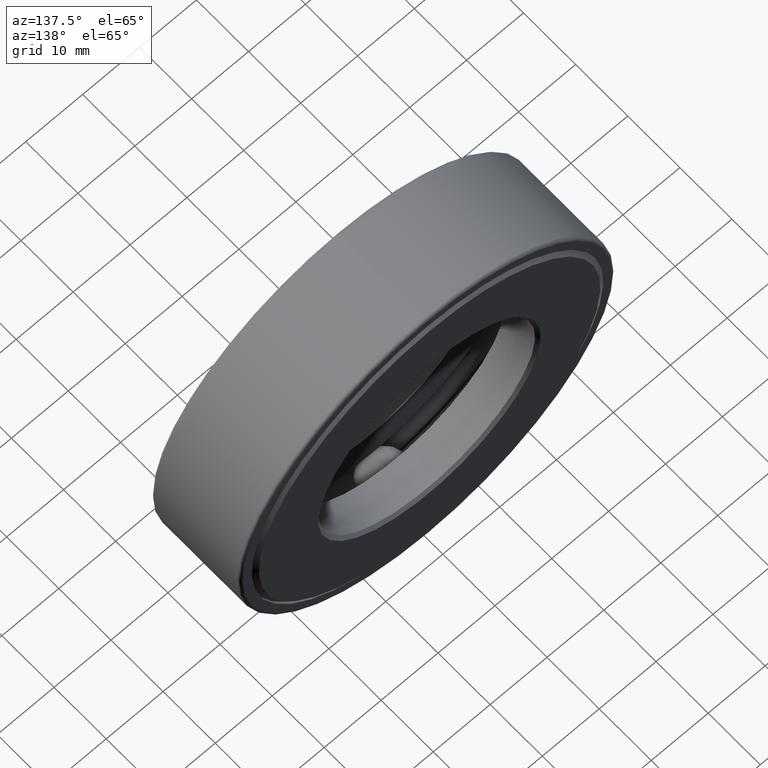
[diagram: clean part render]
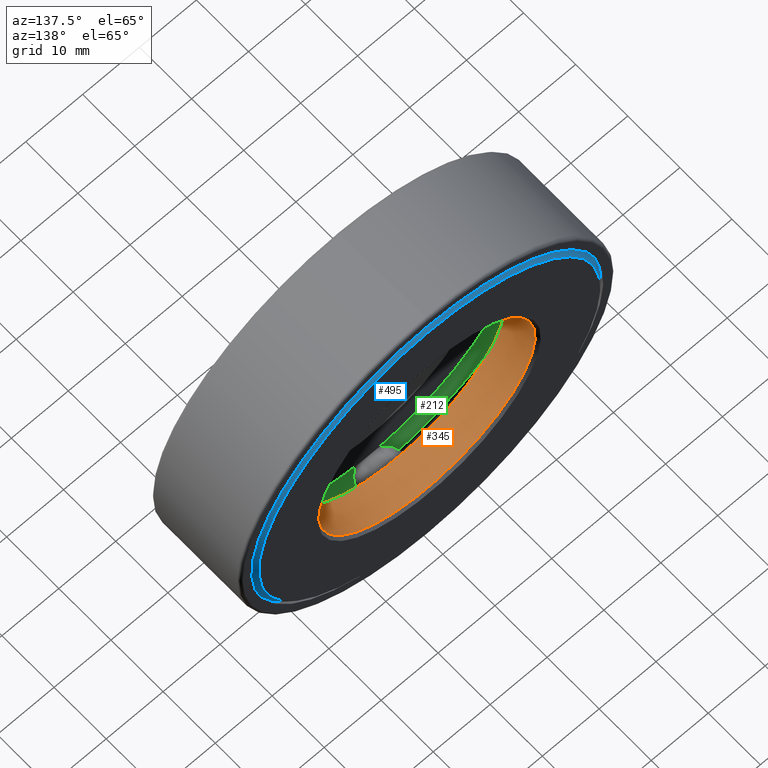
[diagram: same view with three faces highlighted in distinct colors, each labeled with its STEP entity id]
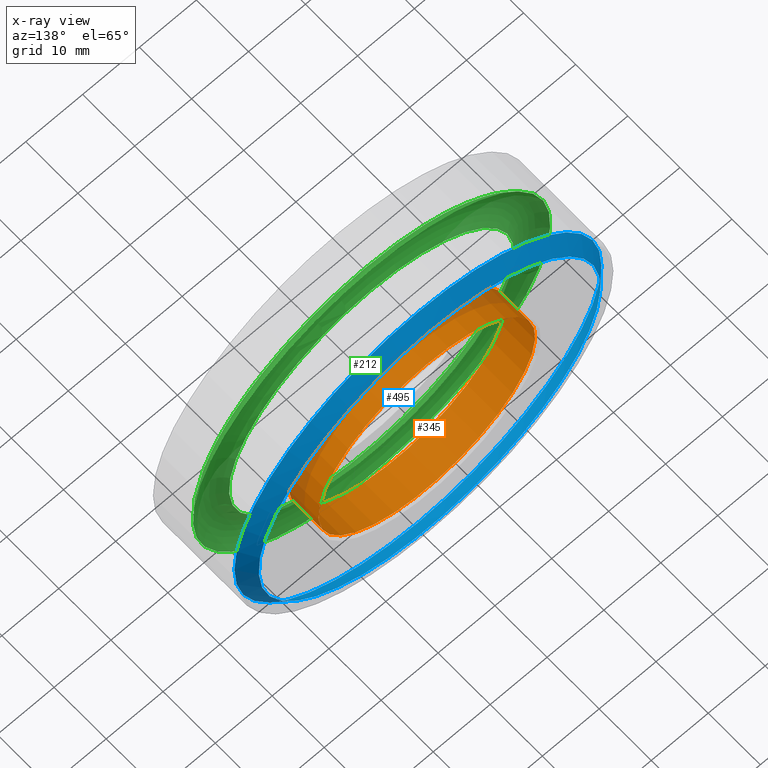
[diagram: x-ray of the same camera — body ghosted, the three highlighted faces saturated]
A machine part, auxiliary view with three faces highlighted in distinct colors.
The next image is the same camera in x-ray (body ghosted, the three faces saturated) — at least one of them is partly hidden behind the body in this view.
Their STEP definitions:

[orange] entity #345 — the highlighted cylindrical surface (bore or boss wall) has radius 19.05 mm, axis along (-0, 1, -0).
#8 = EDGE_CURVE ( 'NONE', #547, #547, #39, .T. ) ;
#32 = CARTESIAN_POINT ( 'NONE',  ( 0.0000000000000000000, 0.4375000000000000000, 0.0000000000000000000 ) ) ;
#39 = CIRCLE ( 'NONE', #539, 0.7500000000000002200 ) ;
#70 = ORIENTED_EDGE ( 'NONE', *, *, #8, .F. ) ;
#77 = DIRECTION ( 'NONE',  ( -0.0000000000000000000, 1.000000000000000000, -0.0000000000000000000 ) ) ;
#98 = EDGE_CURVE ( 'NONE', #519, #519, #534, .T. ) ;
#99 = CARTESIAN_POINT ( 'NONE',  ( 0.0000000000000000000, 0.0000000000000000000, 0.0000000000000000000 ) ) ;
#113 = FACE_OUTER_BOUND ( 'NONE', #275, .T. ) ;
#177 = CARTESIAN_POINT ( 'NONE',  ( 0.0000000000000000000, 0.6674999999999995400, 0.7500000000000002200 ) ) ;
#227 = FACE_OUTER_BOUND ( 'NONE', #238, .T. ) ;
#238 = EDGE_LOOP ( 'NONE', ( #399 ) ) ;
#264 = CARTESIAN_POINT ( 'NONE',  ( 0.0000000000000000000, 0.6674999999999995400, 0.0000000000000000000 ) ) ;
#275 = EDGE_LOOP ( 'NONE', ( #70 ) ) ;
#301 = CARTESIAN_POINT ( 'NONE',  ( 0.0000000000000000000, 0.4375000000000000000, 0.7500000000000002200 ) ) ;
#318 = DIRECTION ( 'NONE',  ( 0.0000000000000000000, 0.0000000000000000000, 1.000000000000000000 ) ) ;
#345 = ADVANCED_FACE ( 'NONE', ( #227, #113 ), #421, .F. ) ;
#375 = AXIS2_PLACEMENT_3D ( 'NONE', #99, #468, #525 ) ;
#399 = ORIENTED_EDGE ( 'NONE', *, *, #98, .T. ) ;
#421 = CYLINDRICAL_SURFACE ( 'NONE', #375, 0.7500000000000002200 ) ;
#468 = DIRECTION ( 'NONE',  ( -0.0000000000000000000, 1.000000000000000000, -0.0000000000000000000 ) ) ;
#498 = DIRECTION ( 'NONE',  ( 0.0000000000000000000, 0.0000000000000000000, 1.000000000000000000 ) ) ;
#519 = VERTEX_POINT ( 'NONE', #177 ) ;
#525 = DIRECTION ( 'NONE',  ( 0.0000000000000000000, 0.0000000000000000000, 1.000000000000000000 ) ) ;
#534 = CIRCLE ( 'NONE', #593, 0.7500000000000002200 ) ;
#539 = AXIS2_PLACEMENT_3D ( 'NONE', #32, #77, #498 ) ;
#547 = VERTEX_POINT ( 'NONE', #301 ) ;
#593 = AXIS2_PLACEMENT_3D ( 'NONE', #264, #595, #318 ) ;
#595 = DIRECTION ( 'NONE',  ( -0.0000000000000000000, 1.000000000000000000, -0.0000000000000000000 ) ) ;

[blue] entity #495 — the highlighted conical surface has half-angle 45 deg.
#11 = DIRECTION ( 'NONE',  ( 0.0000000000000000000, -1.000000000000000000, 0.0000000000000000000 ) ) ;
#15 = ORIENTED_EDGE ( 'NONE', *, *, #381, .F. ) ;
#71 = DIRECTION ( 'NONE',  ( 0.0000000000000000000, 0.0000000000000000000, -1.000000000000000000 ) ) ;
#111 = CIRCLE ( 'NONE', #150, 1.181875000000000000 ) ;
#121 = FACE_OUTER_BOUND ( 'NONE', #377, .T. ) ;
#150 = AXIS2_PLACEMENT_3D ( 'NONE', #339, #242, #342 ) ;
#156 = CARTESIAN_POINT ( 'NONE',  ( 0.0000000000000000000, 0.5995000000000001400, 0.0000000000000000000 ) ) ;
#185 = FACE_BOUND ( 'NONE', #363, .T. ) ;
#190 = CARTESIAN_POINT ( 'NONE',  ( 0.0000000000000000000, 0.5995000000000001400, 1.269874999999999900 ) ) ;
#208 = CONICAL_SURFACE ( 'NONE', #397, 1.181875000000000000, 0.7853981633974482800 ) ;
#242 = DIRECTION ( 'NONE',  ( -0.0000000000000000000, 1.000000000000000000, -0.0000000000000000000 ) ) ;
#296 = CARTESIAN_POINT ( 'NONE',  ( 0.0000000000000000000, 0.6875000000000000000, 0.0000000000000000000 ) ) ;
#339 = CARTESIAN_POINT ( 'NONE',  ( 0.0000000000000000000, 0.6875000000000000000, 0.0000000000000000000 ) ) ;
#342 = DIRECTION ( 'NONE',  ( 0.0000000000000000000, 0.0000000000000000000, 1.000000000000000000 ) ) ;
#353 = DIRECTION ( 'NONE',  ( 0.0000000000000000000, 0.0000000000000000000, 1.000000000000000000 ) ) ;
#358 = CARTESIAN_POINT ( 'NONE',  ( 0.0000000000000000000, 0.6875000000000000000, 1.181875000000000000 ) ) ;
#361 = CIRCLE ( 'NONE', #385, 1.269874999999999900 ) ;
#363 = EDGE_LOOP ( 'NONE', ( #15 ) ) ;
#377 = EDGE_LOOP ( 'NONE', ( #563 ) ) ;
#381 = EDGE_CURVE ( 'NONE', #407, #407, #111, .T. ) ;
#385 = AXIS2_PLACEMENT_3D ( 'NONE', #156, #395, #353 ) ;
#395 = DIRECTION ( 'NONE',  ( -0.0000000000000000000, 1.000000000000000000, -0.0000000000000000000 ) ) ;
#397 = AXIS2_PLACEMENT_3D ( 'NONE', #296, #11, #71 ) ;
#407 = VERTEX_POINT ( 'NONE', #358 ) ;
#451 = EDGE_CURVE ( 'NONE', #501, #501, #361, .T. ) ;
#495 = ADVANCED_FACE ( 'NONE', ( #121, #185 ), #208, .T. ) ;
#501 = VERTEX_POINT ( 'NONE', #190 ) ;
#563 = ORIENTED_EDGE ( 'NONE', *, *, #451, .T. ) ;

[green] entity #212 — the highlighted toroidal blend (fillet) surface has major radius 28.2353 mm and minor (blend) radius 3.9688 mm.
#47 = CARTESIAN_POINT ( 'NONE',  ( 0.0000000000000000000, 0.2499999999999998300, 0.0000000000000000000 ) ) ;
#91 = AXIS2_PLACEMENT_3D ( 'NONE', #580, #122, #402 ) ;
#102 = CIRCLE ( 'NONE', #91, 0.9866250000000003100 ) ;
#122 = DIRECTION ( 'NONE',  ( -0.0000000000000000000, 1.000000000000000000, -0.0000000000000000000 ) ) ;
#157 = ORIENTED_EDGE ( 'NONE', *, *, #506, .F. ) ;
#160 = ORIENTED_EDGE ( 'NONE', *, *, #192, .T. ) ;
#184 = AXIS2_PLACEMENT_3D ( 'NONE', #47, #371, #413 ) ;
#192 = EDGE_CURVE ( 'NONE', #558, #558, #573, .T. ) ;
#212 = ADVANCED_FACE ( 'NONE', ( #347, #401 ), #232, .F. ) ;
#215 = EDGE_LOOP ( 'NONE', ( #157 ) ) ;
#232 = TOROIDAL_SURFACE ( 'NONE', #479, 1.111625000000000100, 0.1562500000000000000 ) ;
#252 = CARTESIAN_POINT ( 'NONE',  ( 0.0000000000000000000, 0.2499999999999998300, 1.236625000000000100 ) ) ;
#314 = VERTEX_POINT ( 'NONE', #472 ) ;
#347 = FACE_OUTER_BOUND ( 'NONE', #215, .T. ) ;
#371 = DIRECTION ( 'NONE',  ( -0.0000000000000000000, 1.000000000000000000, -0.0000000000000000000 ) ) ;
#401 = FACE_OUTER_BOUND ( 'NONE', #541, .T. ) ;
#402 = DIRECTION ( 'NONE',  ( 0.0000000000000000000, 0.0000000000000000000, 1.000000000000000000 ) ) ;
#410 = CARTESIAN_POINT ( 'NONE',  ( 0.0000000000000000000, 0.3437500000000000000, 0.0000000000000000000 ) ) ;
#413 = DIRECTION ( 'NONE',  ( 0.0000000000000000000, 0.0000000000000000000, 1.000000000000000000 ) ) ;
#472 = CARTESIAN_POINT ( 'NONE',  ( 0.0000000000000000000, 0.2499999999999998900, 0.9866250000000003100 ) ) ;
#479 = AXIS2_PLACEMENT_3D ( 'NONE', #410, #557, #601 ) ;
#506 = EDGE_CURVE ( 'NONE', #314, #314, #102, .T. ) ;
#541 = EDGE_LOOP ( 'NONE', ( #160 ) ) ;
#557 = DIRECTION ( 'NONE',  ( -0.0000000000000000000, 1.000000000000000000, -0.0000000000000000000 ) ) ;
#558 = VERTEX_POINT ( 'NONE', #252 ) ;
#573 = CIRCLE ( 'NONE', #184, 1.236625000000000100 ) ;
#580 = CARTESIAN_POINT ( 'NONE',  ( 0.0000000000000000000, 0.2499999999999998900, 0.0000000000000000000 ) ) ;
#601 = DIRECTION ( 'NONE',  ( 0.0000000000000000000, 0.0000000000000000000, 1.000000000000000000 ) ) ;